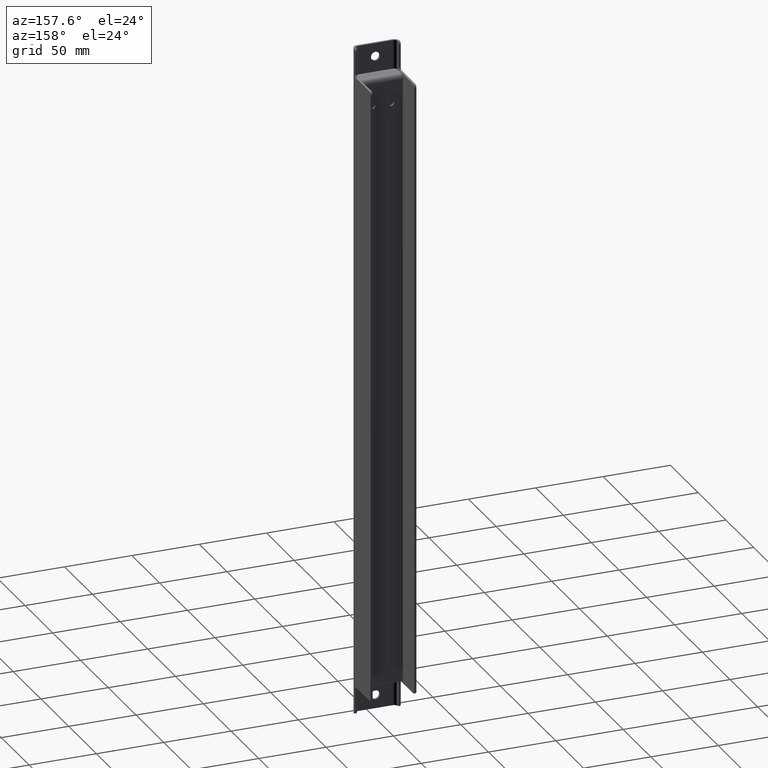
[diagram: clean part render]
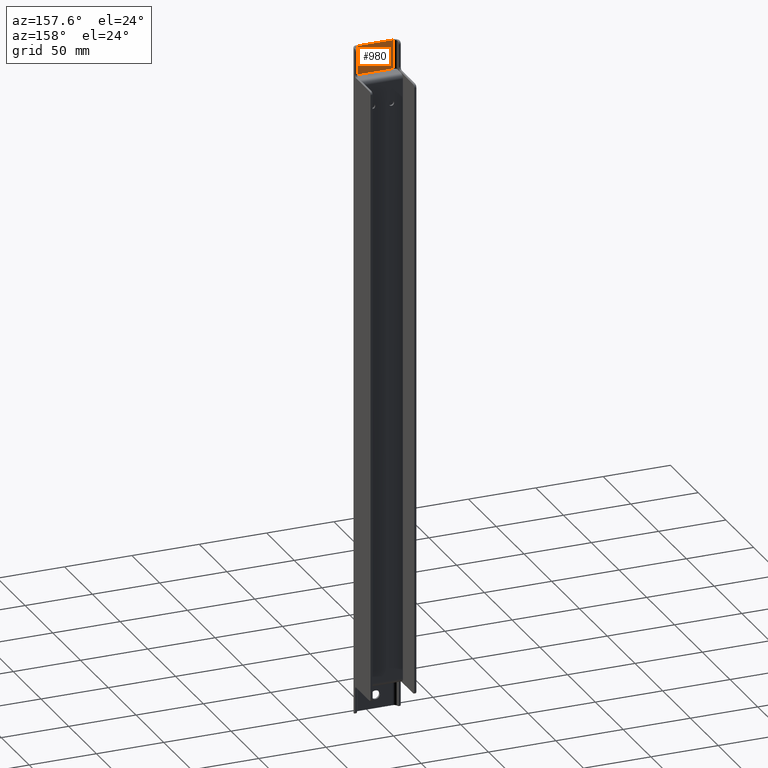
[diagram: same view with one face highlighted and labeled with its STEP entity id]
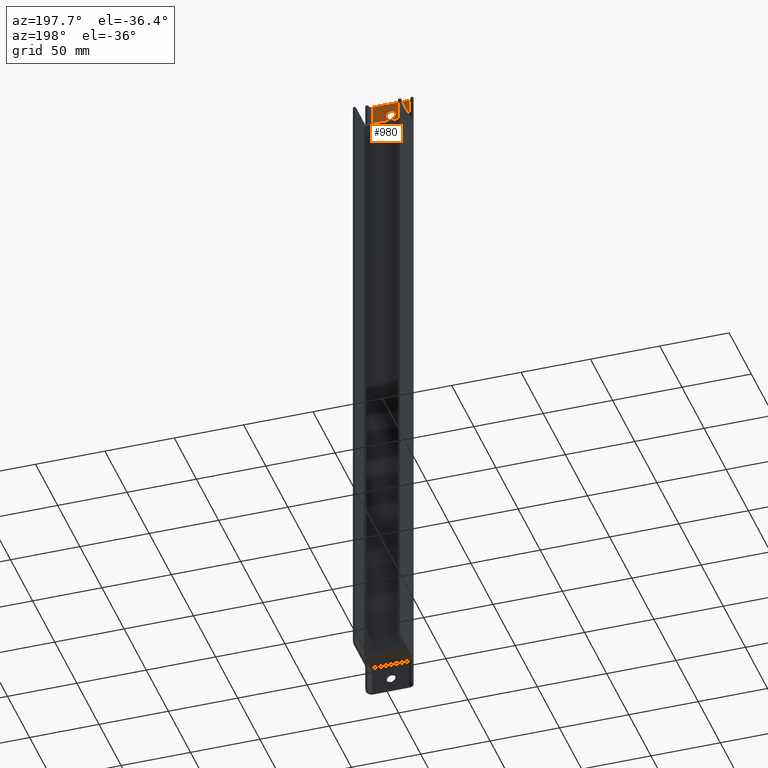
[diagram: same view with one face highlighted and labeled with its STEP entity id]
A machine part, auxiliary view. The second image highlights one B-rep face of the part: STEP entity #980.
A second angle (auxiliary view) of the same face is appended — the face is thin or edge-on in the first view.
In plain terms, the highlighted planar face has unit normal (0, 1, 0).
Its self-contained STEP definition (entity closure, byte-faithful):
#36=LINE('',#1543,#124);
#37=LINE('',#1546,#125);
#38=LINE('',#1548,#126);
#39=LINE('',#1550,#127);
#124=VECTOR('',#1220,1000.);
#125=VECTOR('',#1221,1000.);
#126=VECTOR('',#1222,1000.);
#127=VECTOR('',#1223,1000.);
#201=PLANE('',#1065);
#258=ORIENTED_EDGE('',*,*,#544,.F.);
#259=ORIENTED_EDGE('',*,*,#545,.T.);
#260=ORIENTED_EDGE('',*,*,#546,.T.);
#261=ORIENTED_EDGE('',*,*,#547,.T.);
#262=ORIENTED_EDGE('',*,*,#548,.T.);
#544=EDGE_CURVE('',#688,#689,#36,.T.);
#545=EDGE_CURVE('',#688,#690,#37,.T.);
#546=EDGE_CURVE('',#690,#691,#38,.T.);
#547=EDGE_CURVE('',#691,#689,#39,.T.);
#548=EDGE_CURVE('',#692,#692,#768,.F.);
#688=VERTEX_POINT('',#1544);
#689=VERTEX_POINT('',#1545);
#690=VERTEX_POINT('',#1547);
#691=VERTEX_POINT('',#1549);
#692=VERTEX_POINT('',#1552);
#768=CIRCLE('',#1066,3.29999999999997);
#822=EDGE_LOOP('',(#258,#259,#260,#261));
#823=EDGE_LOOP('',(#262));
#890=FACE_BOUND('',#822,.T.);
#891=FACE_BOUND('',#823,.T.);
#980=ADVANCED_FACE('',(#890,#891),#201,.T.);
#1065=AXIS2_PLACEMENT_3D('',#1542,#1218,#1219);
#1066=AXIS2_PLACEMENT_3D('',#1551,#1224,#1225);
#1218=DIRECTION('',(4.06163832661068E-16,1.,1.66533453693773E-16));
#1219=DIRECTION('',(-1.,4.06163832661068E-16,-8.93686180177302E-17));
#1220=DIRECTION('',(1.,-4.06163832661068E-16,-6.76398658185478E-32));
#1221=DIRECTION('',(3.32185076179638E-17,-1.66533453693773E-16,1.));
#1222=DIRECTION('',(1.,-4.06163832661068E-16,8.93686180177302E-17));
#1223=DIRECTION('',(-3.43749899352818E-17,1.66533453693773E-16,-1.));
#1224=DIRECTION('',(4.06163832661068E-16,1.,1.66533453693773E-16));
#1225=DIRECTION('',(-1.,4.06163832661068E-16,0.));
#1542=CARTESIAN_POINT('',(-9.70120806619915E-15,-32.5130367319026,125.));
#1543=CARTESIAN_POINT('',(-2.06952865992549E-16,-32.5130367319009,228.5));
#1544=CARTESIAN_POINT('',(-12.9999999999999,-32.5130367319009,228.5));
#1545=CARTESIAN_POINT('',(13.,-32.5130367319026,228.5));
#1546=CARTESIAN_POINT('',(-12.9999999999999,-32.5130367319027,500.));
#1547=CARTESIAN_POINT('',(-12.9999999999999,-32.5130367319027,250.));
#1548=CARTESIAN_POINT('',(-7.49999999999999,-32.5130367319026,250.));
#1549=CARTESIAN_POINT('',(13.,-32.5130367319026,250.));
#1550=CARTESIAN_POINT('',(13.0000000000001,-32.5130367319026,500.));
#1551=CARTESIAN_POINT('',(-1.68638208011031E-14,-32.5130367319026,240.));
#1552=CARTESIAN_POINT('',(-3.29999999999999,-32.5130367319026,240.));